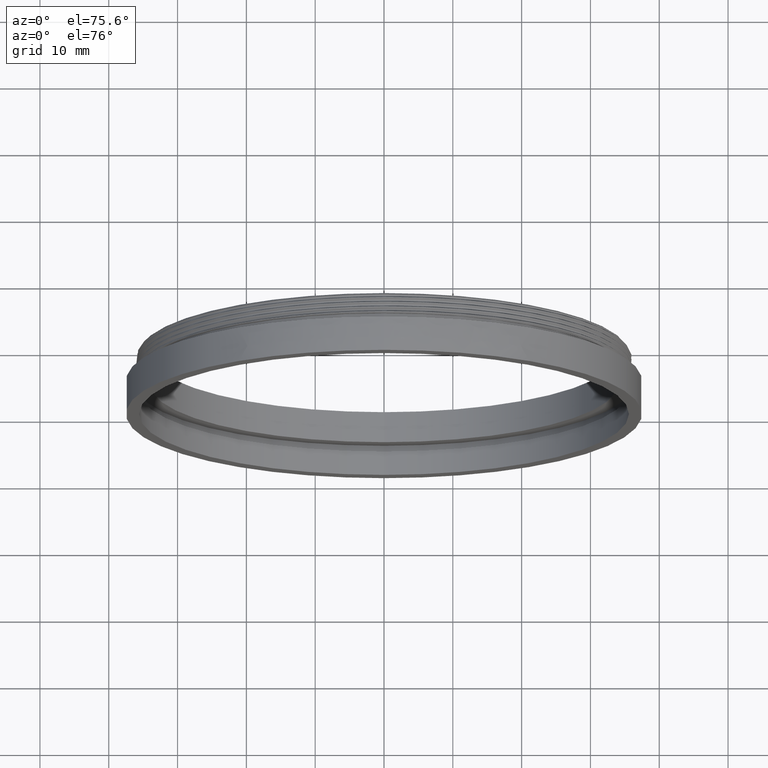
[diagram: clean part render]
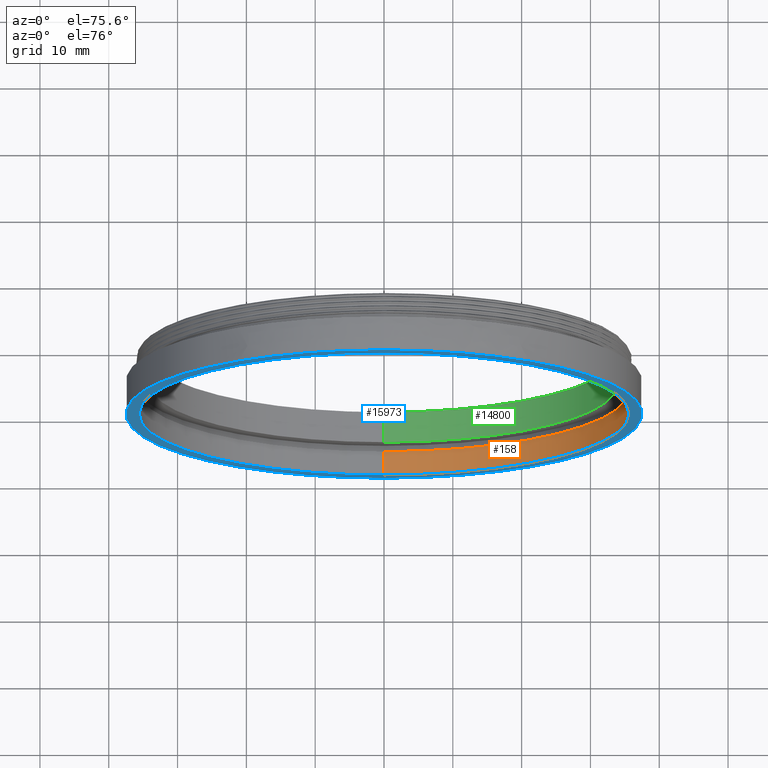
[diagram: same view with three faces highlighted in distinct colors, each labeled with its STEP entity id]
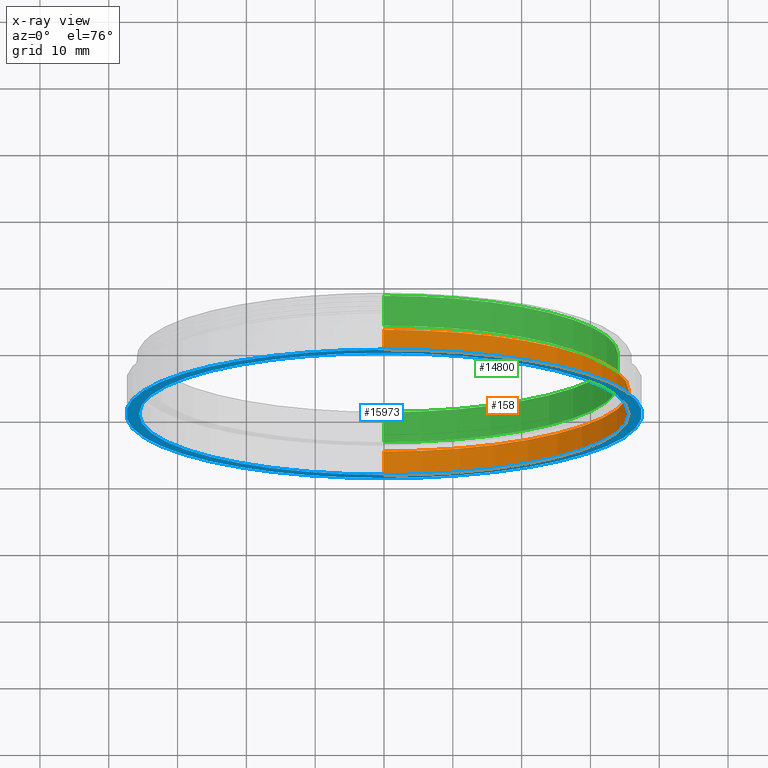
[diagram: x-ray of the same camera — body ghosted, the three highlighted faces saturated]
A machine part, auxiliary view with three faces highlighted in distinct colors.
The next image is the same camera in x-ray (body ghosted, the three faces saturated) — at least one of them is partly hidden behind the body in this view.
Their STEP definitions:

[orange] entity #158 — the highlighted cylindrical surface (partial cylindrical patch) has radius 35.6 mm, axis along (-0, -1, -0).
#110 = VERTEX_POINT ( 'NONE', #10120 ) ;
#158 = ADVANCED_FACE ( 'NONE', ( #2888 ), #1903, .F. ) ;
#365 = DIRECTION ( 'NONE',  ( 0.0000000000000000000, 0.0000000000000000000, -1.000000000000000000 ) ) ;
#418 = CARTESIAN_POINT ( 'NONE',  ( 0.0000000000000000000, 0.0000000000000000000, -35.60000000000218279 ) ) ;
#950 = CARTESIAN_POINT ( 'NONE',  ( 4.359742604964845640E-15, 4.701941862067099187, 35.60000000000218279 ) ) ;
#1292 = CIRCLE ( 'NONE', #10467, 35.60000000000218279 ) ;
#1497 = DIRECTION ( 'NONE',  ( -0.0000000000000000000, -1.000000000000000000, -0.0000000000000000000 ) ) ;
#1529 = VECTOR ( 'NONE', #6549, 1000.000000000000000 ) ;
#1903 = CYLINDRICAL_SURFACE ( 'NONE', #10693, 35.60000000000218279 ) ;
#1982 = ORIENTED_EDGE ( 'NONE', *, *, #5013, .T. ) ;
#2888 = FACE_OUTER_BOUND ( 'NONE', #12716, .T. ) ;
#2972 = DIRECTION ( 'NONE',  ( -0.0000000000000000000, -1.000000000000000000, -0.0000000000000000000 ) ) ;
#4062 = DIRECTION ( 'NONE',  ( -0.0000000000000000000, -1.000000000000000000, -0.0000000000000000000 ) ) ;
#4174 = LINE ( 'NONE', #10411, #1529 ) ;
#4237 = EDGE_CURVE ( 'NONE', #15936, #10787, #4174, .T. ) ;
#4958 = CARTESIAN_POINT ( 'NONE',  ( 0.0000000000000000000, 4.701941862067099187, 0.0000000000000000000 ) ) ;
#5013 = EDGE_CURVE ( 'NONE', #110, #5597, #15359, .T. ) ;
#5597 = VERTEX_POINT ( 'NONE', #9010 ) ;
#5773 = CIRCLE ( 'NONE', #13396, 35.60000000000218279 ) ;
#6549 = DIRECTION ( 'NONE',  ( -0.0000000000000000000, -1.000000000000000000, -0.0000000000000000000 ) ) ;
#6586 = ORIENTED_EDGE ( 'NONE', *, *, #14856, .T. ) ;
#7335 = DIRECTION ( 'NONE',  ( -0.0000000000000000000, -1.000000000000000000, -0.0000000000000000000 ) ) ;
#9010 = CARTESIAN_POINT ( 'NONE',  ( 0.0000000000000000000, 1.201941862066846500, -35.60000000000218279 ) ) ;
#9149 = CARTESIAN_POINT ( 'NONE',  ( 0.0000000000000000000, 1.201941862066846500, 0.0000000000000000000 ) ) ;
#9915 = VECTOR ( 'NONE', #1497, 1000.000000000000000 ) ;
#10120 = CARTESIAN_POINT ( 'NONE',  ( 0.0000000000000000000, 4.701941862067099187, -35.60000000000218279 ) ) ;
#10379 = EDGE_CURVE ( 'NONE', #110, #15936, #1292, .T. ) ;
#10411 = CARTESIAN_POINT ( 'NONE',  ( 4.359742604964845640E-15, 0.0000000000000000000, 35.60000000000218279 ) ) ;
#10467 = AXIS2_PLACEMENT_3D ( 'NONE', #4958, #7335, #16116 ) ;
#10693 = AXIS2_PLACEMENT_3D ( 'NONE', #11666, #2972, #15360 ) ;
#10787 = VERTEX_POINT ( 'NONE', #12492 ) ;
#11549 = ORIENTED_EDGE ( 'NONE', *, *, #10379, .F. ) ;
#11666 = CARTESIAN_POINT ( 'NONE',  ( 0.0000000000000000000, 0.0000000000000000000, 0.0000000000000000000 ) ) ;
#12492 = CARTESIAN_POINT ( 'NONE',  ( 4.359742604964845640E-15, 1.201941862066846500, 35.60000000000218279 ) ) ;
#12716 = EDGE_LOOP ( 'NONE', ( #14399, #11549, #1982, #6586 ) ) ;
#13396 = AXIS2_PLACEMENT_3D ( 'NONE', #9149, #4062, #365 ) ;
#14399 = ORIENTED_EDGE ( 'NONE', *, *, #4237, .F. ) ;
#14856 = EDGE_CURVE ( 'NONE', #5597, #10787, #5773, .T. ) ;
#15359 = LINE ( 'NONE', #418, #9915 ) ;
#15360 = DIRECTION ( 'NONE',  ( 0.0000000000000000000, 0.0000000000000000000, -1.000000000000000000 ) ) ;
#15936 = VERTEX_POINT ( 'NONE', #950 ) ;
#16116 = DIRECTION ( 'NONE',  ( 0.0000000000000000000, 0.0000000000000000000, -1.000000000000000000 ) ) ;

[blue] entity #15973 — the highlighted planar face has unit normal (0, 1, 0).
#357 = EDGE_LOOP ( 'NONE', ( #14257, #2768 ) ) ;
#365 = DIRECTION ( 'NONE',  ( 0.0000000000000000000, 0.0000000000000000000, -1.000000000000000000 ) ) ;
#502 = DIRECTION ( 'NONE',  ( -0.0000000000000000000, -1.000000000000000000, -0.0000000000000000000 ) ) ;
#587 = DIRECTION ( 'NONE',  ( 0.0000000000000000000, 0.0000000000000000000, -1.000000000000000000 ) ) ;
#1149 = CARTESIAN_POINT ( 'NONE',  ( 0.0000000000000000000, 1.201941862066846500, 0.0000000000000000000 ) ) ;
#1208 = EDGE_CURVE ( 'NONE', #11352, #14797, #7804, .T. ) ;
#1426 = EDGE_CURVE ( 'NONE', #14797, #11352, #5974, .T. ) ;
#2473 = ORIENTED_EDGE ( 'NONE', *, *, #1208, .T. ) ;
#2594 = AXIS2_PLACEMENT_3D ( 'NONE', #1149, #11165, #9934 ) ;
#2768 = ORIENTED_EDGE ( 'NONE', *, *, #5238, .F. ) ;
#2905 = DIRECTION ( 'NONE',  ( 0.0000000000000000000, -0.0000000000000000000, 1.000000000000000000 ) ) ;
#3142 = CARTESIAN_POINT ( 'NONE',  ( 0.0000000000000000000, 1.201941862066846500, 0.0000000000000000000 ) ) ;
#4062 = DIRECTION ( 'NONE',  ( -0.0000000000000000000, -1.000000000000000000, -0.0000000000000000000 ) ) ;
#5238 = EDGE_CURVE ( 'NONE', #10787, #5597, #16210, .T. ) ;
#5597 = VERTEX_POINT ( 'NONE', #9010 ) ;
#5773 = CIRCLE ( 'NONE', #13396, 35.60000000000218279 ) ;
#5974 = CIRCLE ( 'NONE', #15152, 37.50000000000008527 ) ;
#6590 = DIRECTION ( 'NONE',  ( 0.0000000000000000000, 1.000000000000000000, 0.0000000000000000000 ) ) ;
#6875 = CARTESIAN_POINT ( 'NONE',  ( 4.592425496802585411E-15, 1.201941862066846500, 37.50000000000008527 ) ) ;
#7804 = CIRCLE ( 'NONE', #13061, 37.50000000000008527 ) ;
#8872 = DIRECTION ( 'NONE',  ( -0.0000000000000000000, -1.000000000000000000, -0.0000000000000000000 ) ) ;
#8958 = EDGE_LOOP ( 'NONE', ( #9737, #2473 ) ) ;
#9010 = CARTESIAN_POINT ( 'NONE',  ( 0.0000000000000000000, 1.201941862066846500, -35.60000000000218279 ) ) ;
#9149 = CARTESIAN_POINT ( 'NONE',  ( 0.0000000000000000000, 1.201941862066846500, 0.0000000000000000000 ) ) ;
#9492 = FACE_OUTER_BOUND ( 'NONE', #8958, .T. ) ;
#9737 = ORIENTED_EDGE ( 'NONE', *, *, #1426, .T. ) ;
#9934 = DIRECTION ( 'NONE',  ( 0.0000000000000000000, 0.0000000000000000000, -1.000000000000000000 ) ) ;
#10787 = VERTEX_POINT ( 'NONE', #12492 ) ;
#11165 = DIRECTION ( 'NONE',  ( -0.0000000000000000000, -1.000000000000000000, -0.0000000000000000000 ) ) ;
#11352 = VERTEX_POINT ( 'NONE', #6875 ) ;
#11455 = CARTESIAN_POINT ( 'NONE',  ( 0.0000000000000000000, 1.201941862066846500, -37.50000000000008527 ) ) ;
#11491 = DIRECTION ( 'NONE',  ( 0.0000000000000000000, 0.0000000000000000000, -1.000000000000000000 ) ) ;
#12492 = CARTESIAN_POINT ( 'NONE',  ( 4.359742604964845640E-15, 1.201941862066846500, 35.60000000000218279 ) ) ;
#13061 = AXIS2_PLACEMENT_3D ( 'NONE', #3142, #502, #587 ) ;
#13266 = CARTESIAN_POINT ( 'NONE',  ( -35.60000000000218279, 1.201941862066846500, 0.0000000000000000000 ) ) ;
#13396 = AXIS2_PLACEMENT_3D ( 'NONE', #9149, #4062, #365 ) ;
#13720 = CARTESIAN_POINT ( 'NONE',  ( 0.0000000000000000000, 1.201941862066846500, 0.0000000000000000000 ) ) ;
#14257 = ORIENTED_EDGE ( 'NONE', *, *, #14856, .F. ) ;
#14498 = PLANE ( 'NONE',  #14700 ) ;
#14700 = AXIS2_PLACEMENT_3D ( 'NONE', #13266, #6590, #2905 ) ;
#14797 = VERTEX_POINT ( 'NONE', #11455 ) ;
#14813 = FACE_BOUND ( 'NONE', #357, .T. ) ;
#14856 = EDGE_CURVE ( 'NONE', #5597, #10787, #5773, .T. ) ;
#15152 = AXIS2_PLACEMENT_3D ( 'NONE', #13720, #8872, #11491 ) ;
#15973 = ADVANCED_FACE ( 'NONE', ( #14813, #9492 ), #14498, .F. ) ;
#16210 = CIRCLE ( 'NONE', #2594, 35.60000000000218279 ) ;

[green] entity #14800 — the highlighted cylindrical surface (partial cylindrical patch) has radius 34 mm, axis along (-0, -1, -0).
#446 = DIRECTION ( 'NONE',  ( 0.0000000000000000000, 0.0000000000000000000, -1.000000000000000000 ) ) ;
#526 = VECTOR ( 'NONE', #7538, 1000.000000000000000 ) ;
#956 = EDGE_CURVE ( 'NONE', #7004, #14569, #14998, .T. ) ;
#1629 = EDGE_CURVE ( 'NONE', #7004, #8405, #14376, .T. ) ;
#2034 = CARTESIAN_POINT ( 'NONE',  ( 0.0000000000000000000, 5.701941862067100075, -34.00000000000002842 ) ) ;
#2341 = EDGE_LOOP ( 'NONE', ( #13661, #13413, #3073, #4684 ) ) ;
#2492 = CARTESIAN_POINT ( 'NONE',  ( 0.0000000000000000000, 10.20194186206709475, -34.00000000000002842 ) ) ;
#2536 = CARTESIAN_POINT ( 'NONE',  ( 4.163799117101004504E-15, 0.0000000000000000000, 34.00000000000002842 ) ) ;
#3073 = ORIENTED_EDGE ( 'NONE', *, *, #956, .T. ) ;
#4684 = ORIENTED_EDGE ( 'NONE', *, *, #7444, .T. ) ;
#5296 = CARTESIAN_POINT ( 'NONE',  ( 0.0000000000000000000, 0.0000000000000000000, 0.0000000000000000000 ) ) ;
#6598 = CARTESIAN_POINT ( 'NONE',  ( 4.163799117101004504E-15, 5.701941862067100075, 34.00000000000002842 ) ) ;
#6759 = DIRECTION ( 'NONE',  ( -0.0000000000000000000, -1.000000000000000000, -0.0000000000000000000 ) ) ;
#6954 = DIRECTION ( 'NONE',  ( -0.0000000000000000000, -1.000000000000000000, -0.0000000000000000000 ) ) ;
#7004 = VERTEX_POINT ( 'NONE', #2492 ) ;
#7039 = CARTESIAN_POINT ( 'NONE',  ( 0.0000000000000000000, 5.701941862067100075, 0.0000000000000000000 ) ) ;
#7444 = EDGE_CURVE ( 'NONE', #14569, #10253, #12813, .T. ) ;
#7538 = DIRECTION ( 'NONE',  ( -0.0000000000000000000, -1.000000000000000000, -0.0000000000000000000 ) ) ;
#7699 = LINE ( 'NONE', #2536, #526 ) ;
#8405 = VERTEX_POINT ( 'NONE', #10144 ) ;
#8613 = AXIS2_PLACEMENT_3D ( 'NONE', #12318, #9703, #16086 ) ;
#8761 = CARTESIAN_POINT ( 'NONE',  ( 0.0000000000000000000, 0.0000000000000000000, -34.00000000000002842 ) ) ;
#9379 = VECTOR ( 'NONE', #11391, 1000.000000000000000 ) ;
#9703 = DIRECTION ( 'NONE',  ( -0.0000000000000000000, -1.000000000000000000, -0.0000000000000000000 ) ) ;
#9931 = AXIS2_PLACEMENT_3D ( 'NONE', #7039, #6954, #14426 ) ;
#10144 = CARTESIAN_POINT ( 'NONE',  ( 4.163799117101004504E-15, 10.20194186206709475, 34.00000000000002842 ) ) ;
#10253 = VERTEX_POINT ( 'NONE', #6598 ) ;
#10307 = CYLINDRICAL_SURFACE ( 'NONE', #14662, 34.00000000000002842 ) ;
#11391 = DIRECTION ( 'NONE',  ( -0.0000000000000000000, -1.000000000000000000, -0.0000000000000000000 ) ) ;
#12318 = CARTESIAN_POINT ( 'NONE',  ( 0.0000000000000000000, 10.20194186206709475, 0.0000000000000000000 ) ) ;
#12813 = CIRCLE ( 'NONE', #9931, 34.00000000000002842 ) ;
#12926 = FACE_OUTER_BOUND ( 'NONE', #2341, .T. ) ;
#13413 = ORIENTED_EDGE ( 'NONE', *, *, #1629, .F. ) ;
#13661 = ORIENTED_EDGE ( 'NONE', *, *, #15435, .F. ) ;
#14376 = CIRCLE ( 'NONE', #8613, 34.00000000000002842 ) ;
#14426 = DIRECTION ( 'NONE',  ( 0.0000000000000000000, 0.0000000000000000000, -1.000000000000000000 ) ) ;
#14569 = VERTEX_POINT ( 'NONE', #2034 ) ;
#14662 = AXIS2_PLACEMENT_3D ( 'NONE', #5296, #6759, #446 ) ;
#14800 = ADVANCED_FACE ( 'NONE', ( #12926 ), #10307, .F. ) ;
#14998 = LINE ( 'NONE', #8761, #9379 ) ;
#15435 = EDGE_CURVE ( 'NONE', #8405, #10253, #7699, .T. ) ;
#16086 = DIRECTION ( 'NONE',  ( 0.0000000000000000000, 0.0000000000000000000, -1.000000000000000000 ) ) ;